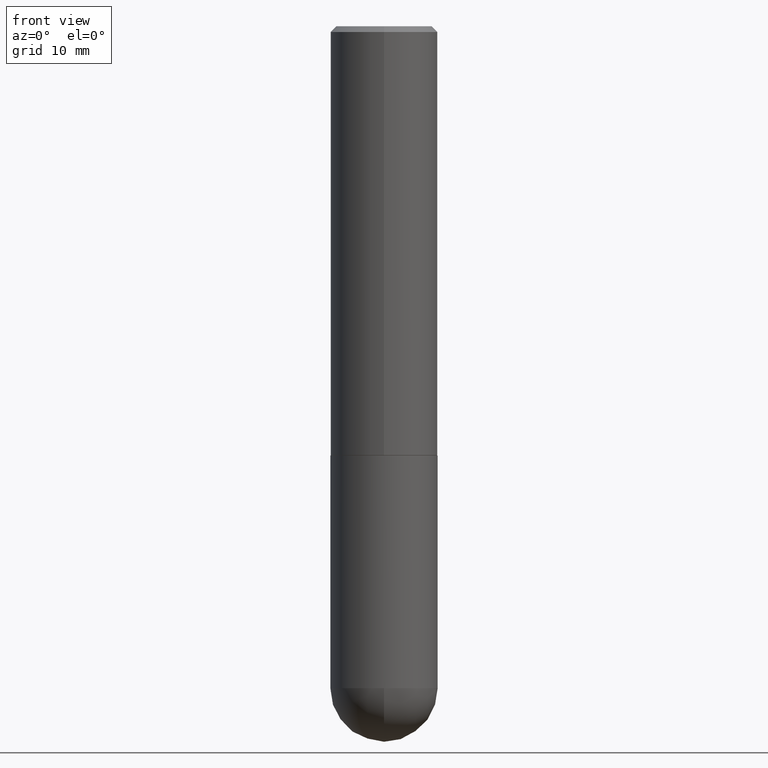
[diagram: clean part render]
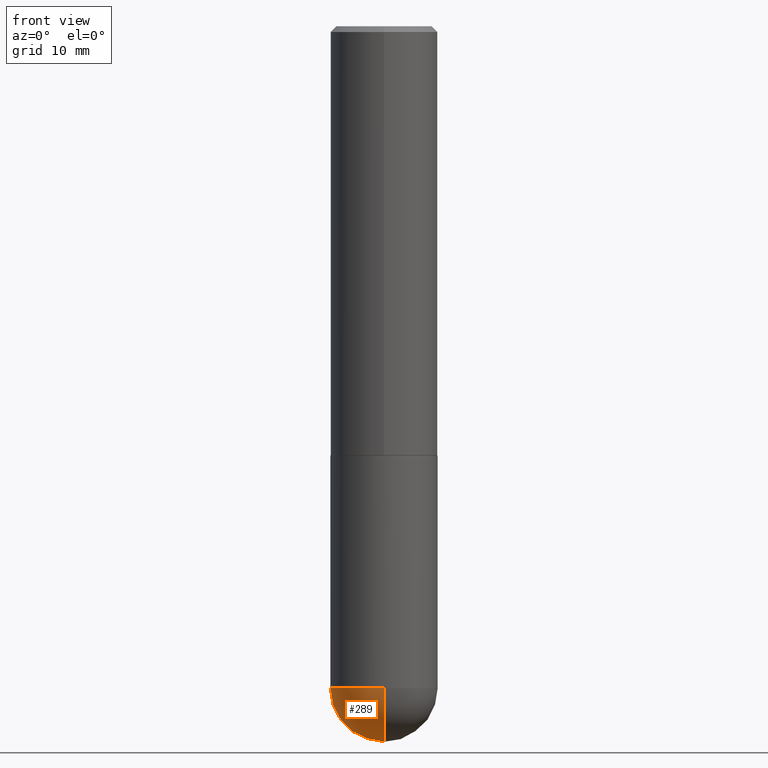
[diagram: same view with one face highlighted and labeled with its STEP entity id]
A machine part, front view. The second image highlights one B-rep face of the part: STEP entity #289.
In plain terms, the highlighted spherical surface has radius 4.7625 mm.
Its self-contained STEP definition (entity closure, byte-faithful):
#13 = DIRECTION ( 'NONE',  ( 1.000000000000000000, -6.982962677686270655E-15, 0.000000000000000000 ) ) ;
#18 = CIRCLE ( 'NONE', #142, 0.1875000000000000555 ) ;
#24 = DIRECTION ( 'NONE',  ( -7.105427357600999492E-15, -1.000000000000000000, 0.000000000000000000 ) ) ;
#37 = CARTESIAN_POINT ( 'NONE',  ( 5.655146614303128380E-29, -8.074050596074775072E-15, -2.312500000000000000 ) ) ;
#47 = DIRECTION ( 'NONE',  ( 6.982962677686265922E-15, 1.000000000000000000, 0.000000000000000000 ) ) ;
#51 = DIRECTION ( 'NONE',  ( -1.000000000000000000, 7.105427357601001070E-15, -4.926315508542082329E-29 ) ) ;
#85 = AXIS2_PLACEMENT_3D ( 'NONE', #374, #371, #47 ) ;
#87 = ORIENTED_EDGE ( 'NONE', *, *, #310, .F. ) ;
#100 = DIRECTION ( 'NONE',  ( -2.445468806185136597E-29, 3.491481338843145583E-15, 1.000000000000000000 ) ) ;
#129 = VERTEX_POINT ( 'NONE', #373 ) ;
#136 = CARTESIAN_POINT ( 'NONE',  ( 5.324026836389243254E-29, -8.548232964214825368E-15, -2.312500000000000000 ) ) ;
#139 = CARTESIAN_POINT ( 'NONE',  ( 5.790569421510013204E-29, -9.191404651505909607E-15, -2.500000000000000000 ) ) ;
#142 = AXIS2_PLACEMENT_3D ( 'NONE', #37, #100, #13 ) ;
#164 = ORIENTED_EDGE ( 'NONE', *, *, #355, .T. ) ;
#180 = CIRCLE ( 'NONE', #282, 0.1875000000000000555 ) ;
#202 = VERTEX_POINT ( 'NONE', #334 ) ;
#204 = SPHERICAL_SURFACE ( 'NONE', #337, 0.1875000000000003331 ) ;
#216 = CARTESIAN_POINT ( 'NONE',  ( 5.324026836389243254E-29, -8.548232964214825368E-15, -2.312500000000000000 ) ) ;
#225 = DIRECTION ( 'NONE',  ( -2.445468806185136597E-29, 3.491481338843145583E-15, 1.000000000000000000 ) ) ;
#233 = DIRECTION ( 'NONE',  ( 6.982962677686266711E-15, 1.000000000000000000, -2.913971193241875639E-15 ) ) ;
#238 = CIRCLE ( 'NONE', #85, 0.1875000000000003331 ) ;
#261 = CIRCLE ( 'NONE', #316, 0.1875000000000003331 ) ;
#267 = FACE_OUTER_BOUND ( 'NONE', #345, .T. ) ;
#270 = DIRECTION ( 'NONE',  ( -1.000000000000000000, 6.982962677686266711E-15, -4.883557194083113462E-29 ) ) ;
#271 = VERTEX_POINT ( 'NONE', #139 ) ;
#282 = AXIS2_PLACEMENT_3D ( 'NONE', #366, #225, #353 ) ;
#289 = ADVANCED_FACE ( 'NONE', ( #267 ), #204, .T. ) ;
#304 = ORIENTED_EDGE ( 'NONE', *, *, #344, .F. ) ;
#308 = EDGE_CURVE ( 'NONE', #129, #330, #18, .T. ) ;
#310 = EDGE_CURVE ( 'NONE', #330, #202, #180, .T. ) ;
#316 = AXIS2_PLACEMENT_3D ( 'NONE', #216, #51, #24 ) ;
#330 = VERTEX_POINT ( 'NONE', #343 ) ;
#334 = CARTESIAN_POINT ( 'NONE',  ( -1.332267629550134009E-15, -0.1875000000000084932, -2.312499999999999556 ) ) ;
#337 = AXIS2_PLACEMENT_3D ( 'NONE', #136, #270, #233 ) ;
#343 = CARTESIAN_POINT ( 'NONE',  ( -0.1875000000000000555, -5.323368672619559170E-15, -2.312500000000000000 ) ) ;
#344 = EDGE_CURVE ( 'NONE', #271, #129, #238, .T. ) ;
#345 = EDGE_LOOP ( 'NONE', ( #304, #164, #87, #409 ) ) ;
#353 = DIRECTION ( 'NONE',  ( 1.000000000000000000, -6.982962677686270655E-15, 0.000000000000000000 ) ) ;
#355 = EDGE_CURVE ( 'NONE', #271, #202, #261, .T. ) ;
#366 = CARTESIAN_POINT ( 'NONE',  ( 5.655146614303128380E-29, -8.074050596074775072E-15, -2.312500000000000000 ) ) ;
#371 = DIRECTION ( 'NONE',  ( 1.000000000000000000, -6.982962677686265922E-15, 4.883557194083112340E-29 ) ) ;
#373 = CARTESIAN_POINT ( 'NONE',  ( 1.309305502066231017E-15, 0.1874999999999918954, -2.312500000000000444 ) ) ;
#374 = CARTESIAN_POINT ( 'NONE',  ( 5.324026836389243254E-29, -8.548232964214825368E-15, -2.312500000000000000 ) ) ;
#409 = ORIENTED_EDGE ( 'NONE', *, *, #308, .F. ) ;